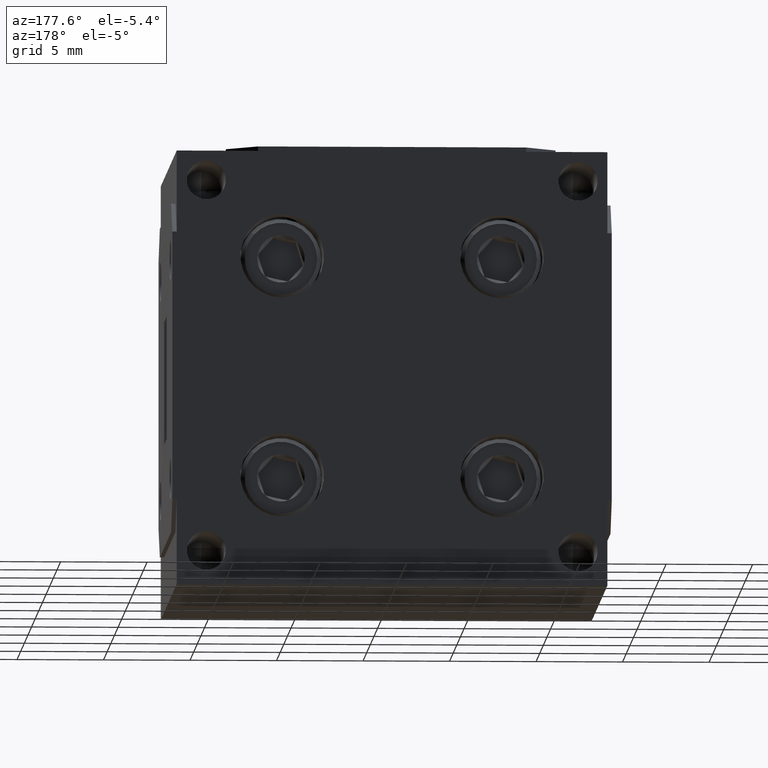
[diagram: clean part render]
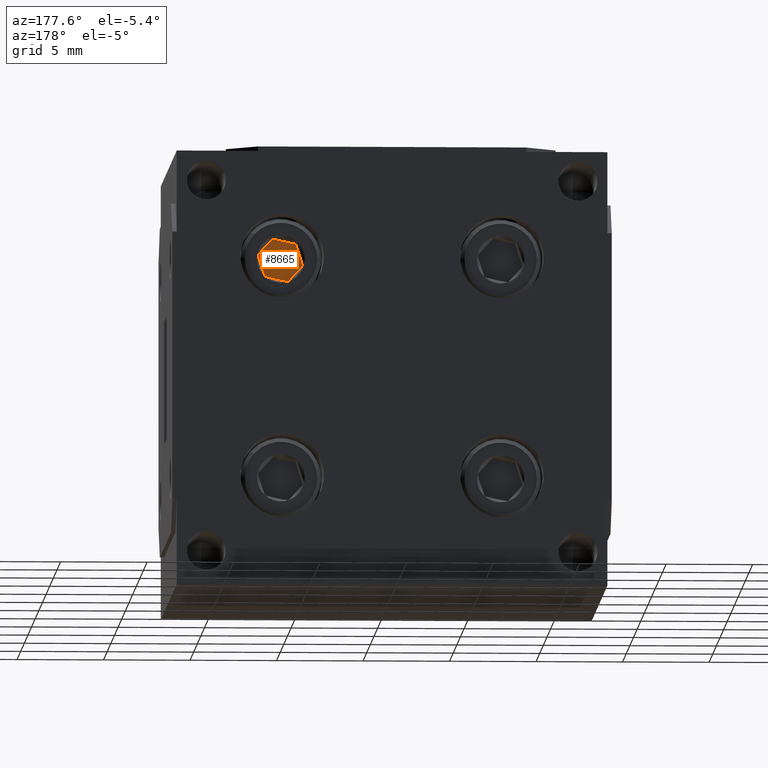
[diagram: same view with one face highlighted and labeled with its STEP entity id]
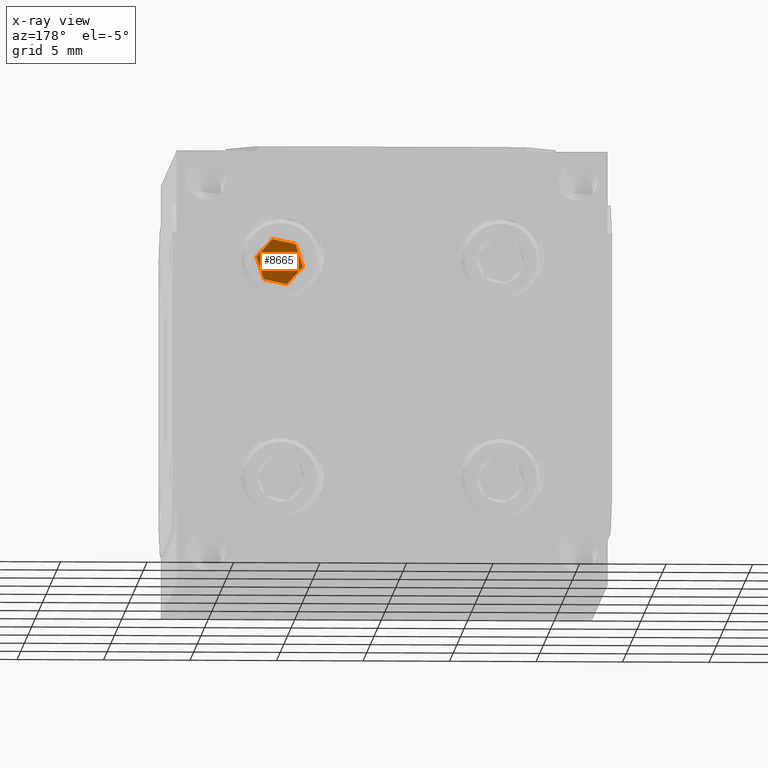
[diagram: x-ray of the same camera — body ghosted, the highlighted face saturated]
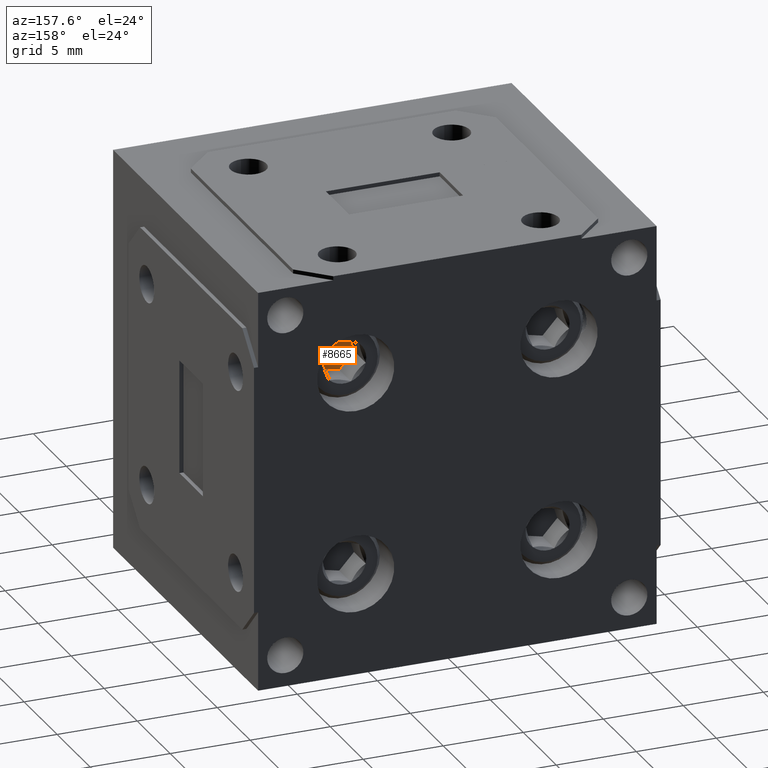
[diagram: same view with one face highlighted and labeled with its STEP entity id]
A machine part, auxiliary view. The second image highlights one B-rep face of the part: STEP entity #8665.
The next image is the same camera in x-ray: the body ghosted, the highlighted face saturated — about 0% of this face is hidden behind the body in this view.
A second angle (auxiliary view) of the same face is appended — the face is thin or edge-on in the first view.
In plain terms, the highlighted planar face has unit normal (-0, 1, 0).
Its self-contained STEP definition (entity closure, byte-faithful):
#87 = CARTESIAN_POINT ( 'NONE',  ( 0.2698232052694191641, -0.1383125000000000049, 0.1583697482659440769 ) ) ;
#231 = VECTOR ( 'NONE', #4317, 39.37007874015748143 ) ;
#426 = CARTESIAN_POINT ( 'NONE',  ( 0.2863629778869947740, -0.1383125000000000049, 0.2099073405822222405 ) ) ;
#506 = EDGE_CURVE ( 'NONE', #8464, #9280, #2734, .T. ) ;
#599 = CARTESIAN_POINT ( 'NONE',  ( 0.2136370221130052260, -0.1383125000000000049, 0.2900926594177778983 ) ) ;
#646 = ORIENTED_EDGE ( 'NONE', *, *, #8576, .T. ) ;
#659 = EDGE_CURVE ( 'NONE', #5591, #9064, #886, .T. ) ;
#886 = LINE ( 'NONE', #9249, #4656 ) ;
#1074 = ORIENTED_EDGE ( 'NONE', *, *, #659, .T. ) ;
#1456 = ORIENTED_EDGE ( 'NONE', *, *, #4685, .T. ) ;
#2004 = LINE ( 'NONE', #426, #9244 ) ;
#2595 = CARTESIAN_POINT ( 'NONE',  ( 0.2665397726175756099, -0.1383125000000000049, 0.3015375923162782468 ) ) ;
#2655 = DIRECTION ( 'NONE',  ( -0.6718136022909710903, -3.092944355078045021E-17, 0.7407202466362241555 ) ) ;
#2672 = CARTESIAN_POINT ( 'NONE',  ( 0.1970972494954295884, -0.1383125000000000049, 0.2385550671014997071 ) ) ;
#2727 = CARTESIAN_POINT ( 'NONE',  ( 0.2863629778869947740, -0.1383125000000000049, 0.2099073405822222405 ) ) ;
#2734 = LINE ( 'NONE', #10532, #3752 ) ;
#2751 = AXIS2_PLACEMENT_3D ( 'NONE', #87, #8756, #3344 ) ;
#2867 = ORIENTED_EDGE ( 'NONE', *, *, #10096, .T. ) ;
#2896 = VECTOR ( 'NONE', #9555, 39.37007874015748854 ) ;
#3045 = VERTEX_POINT ( 'NONE', #2727 ) ;
#3344 = DIRECTION ( 'NONE',  ( 0.7407202466362242665, -1.777884834934753969E-17, 0.6718136022909709792 ) ) ;
#3665 = LINE ( 'NONE', #8056, #4080 ) ;
#3685 = DIRECTION ( 'NONE',  ( 0.9773893518299305860, 6.778745482421131126E-20, 0.2114475228738044998 ) ) ;
#3752 = VECTOR ( 'NONE', #3685, 39.37007874015748143 ) ;
#4080 = VECTOR ( 'NONE', #10736, 39.37007874015748143 ) ;
#4317 = DIRECTION ( 'NONE',  ( 0.3055757495389597178, -3.086165609595622348E-17, 0.9521677695100285721 ) ) ;
#4374 = FACE_OUTER_BOUND ( 'NONE', #7873, .T. ) ;
#4656 = VECTOR ( 'NONE', #2655, 39.37007874015748854 ) ;
#4685 = EDGE_CURVE ( 'NONE', #10876, #3045, #3665, .T. ) ;
#5136 = LINE ( 'NONE', #2595, #2896 ) ;
#5237 = ORIENTED_EDGE ( 'NONE', *, *, #506, .T. ) ;
#5441 = DIRECTION ( 'NONE',  ( -0.9773893518299305860, -6.778745482421747424E-20, -0.2114475228738043611 ) ) ;
#5591 = VERTEX_POINT ( 'NONE', #11114 ) ;
#5884 = ORIENTED_EDGE ( 'NONE', *, *, #7559, .T. ) ;
#7559 = EDGE_CURVE ( 'NONE', #9280, #10876, #5136, .T. ) ;
#7739 = LINE ( 'NONE', #2672, #231 ) ;
#7837 = CARTESIAN_POINT ( 'NONE',  ( 0.1970972494954295884, -0.1383125000000000049, 0.2385550671014997071 ) ) ;
#7852 = PLANE ( 'NONE',  #2751 ) ;
#7873 = EDGE_LOOP ( 'NONE', ( #1456, #2867, #1074, #646, #5237, #5884 ) ) ;
#8056 = CARTESIAN_POINT ( 'NONE',  ( 0.3029027505045703839, -0.1383125000000000049, 0.2614449328985004040 ) ) ;
#8394 = CARTESIAN_POINT ( 'NONE',  ( 0.2665397726175756099, -0.1383125000000000049, 0.3015375923162782468 ) ) ;
#8464 = VERTEX_POINT ( 'NONE', #599 ) ;
#8576 = EDGE_CURVE ( 'NONE', #9064, #8464, #7739, .T. ) ;
#8665 = ADVANCED_FACE ( 'NONE', ( #4374 ), #7852, .T. ) ;
#8756 = DIRECTION ( 'NONE',  ( -7.609667954468323532E-18, 1.000000000000000000, 3.485413720941533510E-17 ) ) ;
#9064 = VERTEX_POINT ( 'NONE', #7837 ) ;
#9244 = VECTOR ( 'NONE', #5441, 39.37007874015748143 ) ;
#9249 = CARTESIAN_POINT ( 'NONE',  ( 0.2334602273824243901, -0.1383125000000000049, 0.1984624076837218920 ) ) ;
#9280 = VERTEX_POINT ( 'NONE', #8394 ) ;
#9555 = DIRECTION ( 'NONE',  ( 0.6718136022909707572, 3.092944355078045637E-17, -0.7407202466362243776 ) ) ;
#9941 = CARTESIAN_POINT ( 'NONE',  ( 0.3029027505045703839, -0.1383125000000000049, 0.2614449328985004040 ) ) ;
#10096 = EDGE_CURVE ( 'NONE', #3045, #5591, #2004, .T. ) ;
#10532 = CARTESIAN_POINT ( 'NONE',  ( 0.2136370221130052260, -0.1383125000000000049, 0.2900926594177778983 ) ) ;
#10736 = DIRECTION ( 'NONE',  ( -0.3055757495389598288, 3.086165609595622964E-17, -0.9521677695100285721 ) ) ;
#10876 = VERTEX_POINT ( 'NONE', #9941 ) ;
#11114 = CARTESIAN_POINT ( 'NONE',  ( 0.2334602273824243901, -0.1383125000000000049, 0.1984624076837218920 ) ) ;